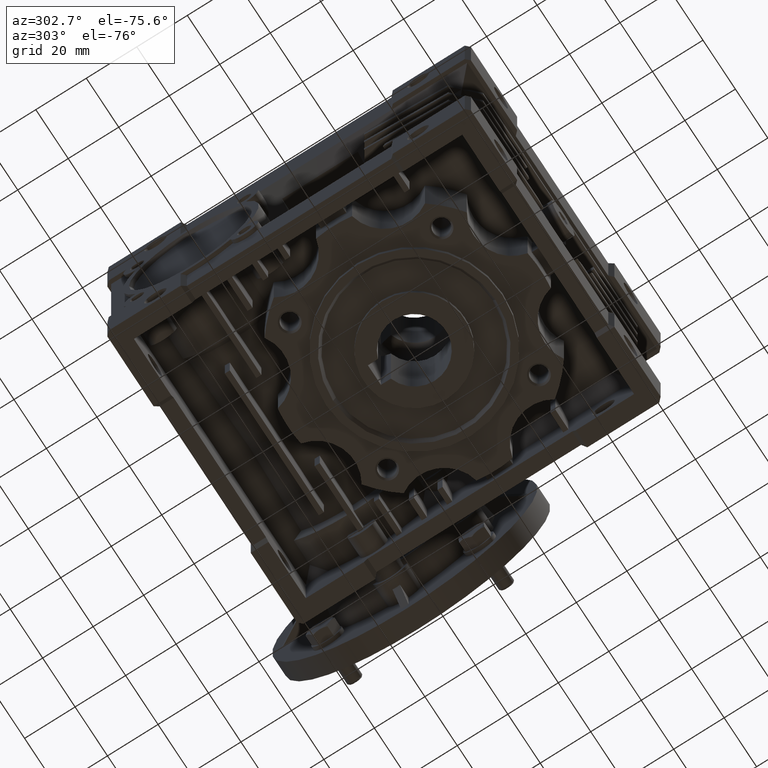
[diagram: clean part render]
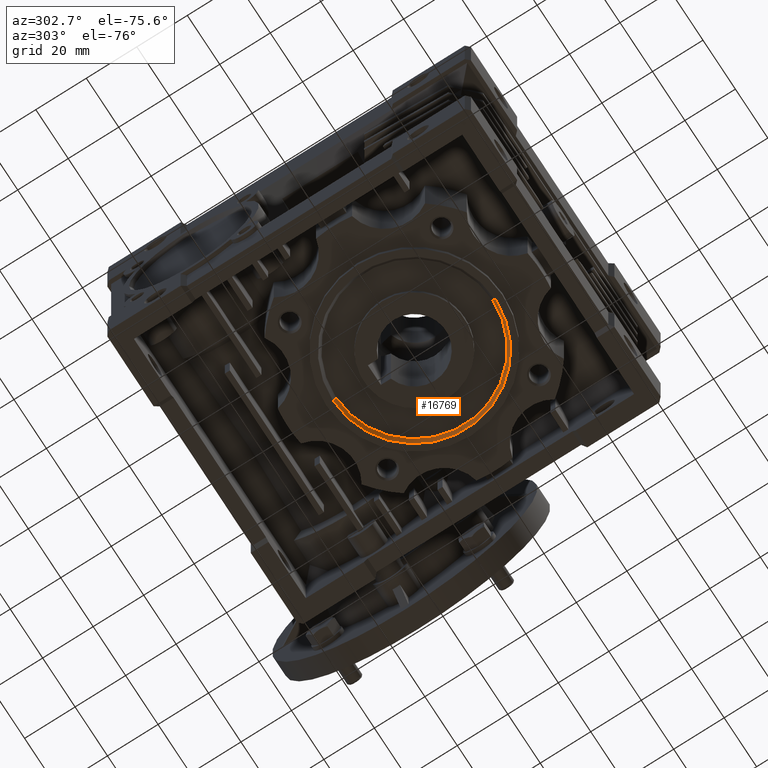
[diagram: same view with one face highlighted and labeled with its STEP entity id]
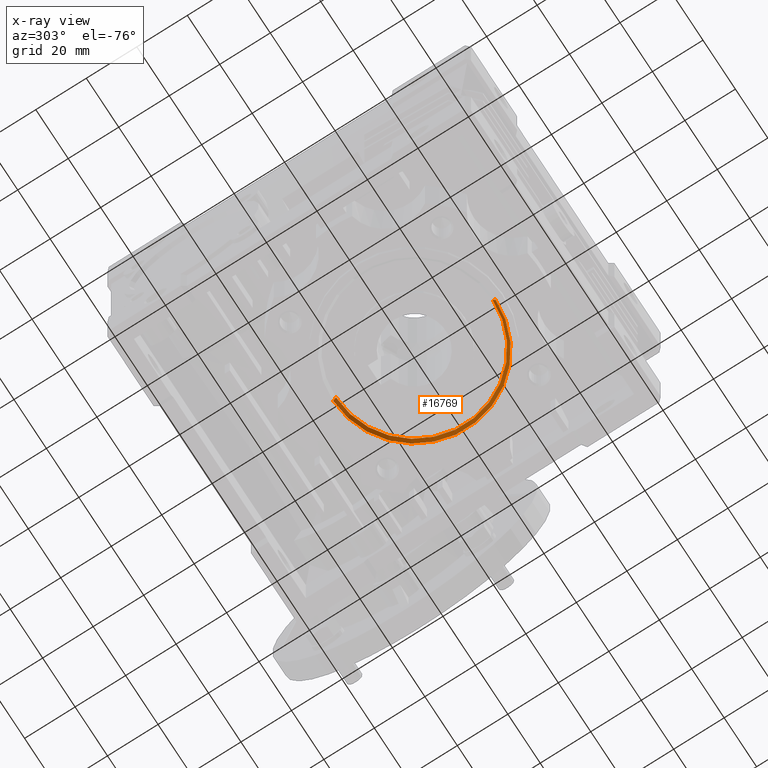
[diagram: x-ray of the same camera — body ghosted, the highlighted face saturated]
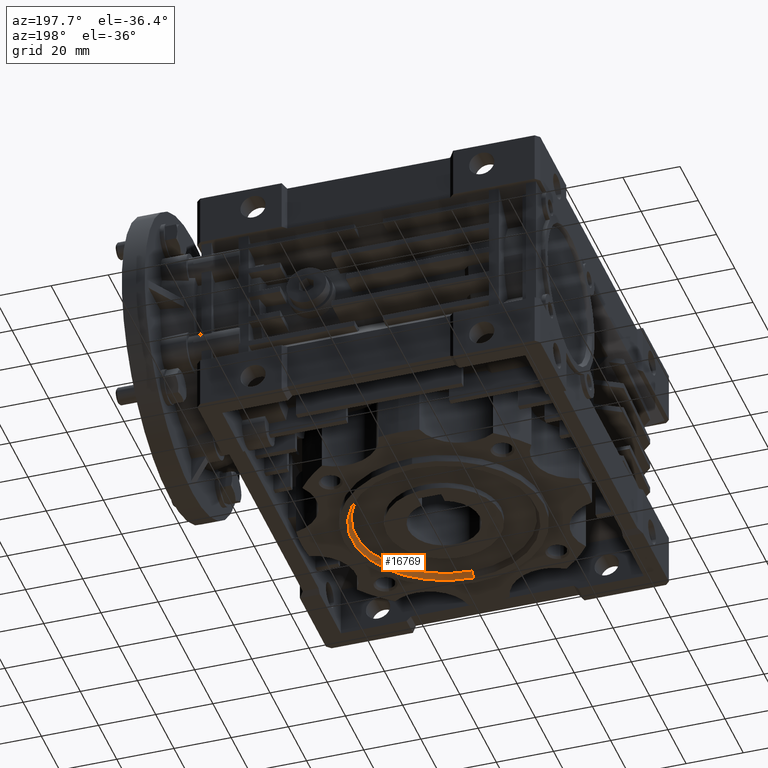
[diagram: same view with one face highlighted and labeled with its STEP entity id]
A machine part, auxiliary view. The second image highlights one B-rep face of the part: STEP entity #16769.
The next image is the same camera in x-ray: the body ghosted, the highlighted face saturated — about 0% of this face is hidden behind the body in this view.
A second angle (auxiliary view) of the same face is appended — the face is thin or edge-on in the first view.
In plain terms, the highlighted conical surface has half-angle 30.006 deg.
Its self-contained STEP definition (entity closure, byte-faithful):
#2052 = CARTESIAN_POINT ( 'NONE',  ( 0.000000000000000000, 0.000000000000000000, -46.00000000000000000 ) ) ;
#2141 = VECTOR ( 'NONE', #9228, 999.9999999999998863 ) ;
#4068 = CARTESIAN_POINT ( 'NONE',  ( 0.000000000000000000, -31.00000000000000000, -44.00000000000000000 ) ) ;
#4929 = VERTEX_POINT ( 'NONE', #19491 ) ;
#5472 = CIRCLE ( 'NONE', #21029, 32.15500000000000114 ) ;
#6647 = CARTESIAN_POINT ( 'NONE',  ( -3.937851782658314085E-15, 32.15500000000000114, -46.00000000000000000 ) ) ;
#7012 = EDGE_CURVE ( 'NONE', #34197, #24143, #33931, .T. ) ;
#7653 = FACE_OUTER_BOUND ( 'NONE', #20293, .T. ) ;
#8267 = DIRECTION ( 'NONE',  ( 0.000000000000000000, 0.000000000000000000, -1.000000000000000000 ) ) ;
#9228 = DIRECTION ( 'NONE',  ( 0.000000000000000000, -0.5000972435561920060, -0.8659692529111521209 ) ) ;
#9717 = DIRECTION ( 'NONE',  ( -6.124424885835048602E-17, 0.5000972435561920060, -0.8659692529111521209 ) ) ;
#9815 = DIRECTION ( 'NONE',  ( 0.000000000000000000, -1.000000000000000000, 0.000000000000000000 ) ) ;
#10182 = DIRECTION ( 'NONE',  ( 0.000000000000000000, 0.000000000000000000, -1.000000000000000000 ) ) ;
#10289 = DIRECTION ( 'NONE',  ( 0.000000000000000000, 0.000000000000000000, 1.000000000000000000 ) ) ;
#10411 = CARTESIAN_POINT ( 'NONE',  ( 0.000000000000000000, -32.15500000000000114, -46.00000000000000000 ) ) ;
#10977 = CARTESIAN_POINT ( 'NONE',  ( 0.000000000000000000, 0.000000000000000000, -44.00000000000000000 ) ) ;
#13511 = ORIENTED_EDGE ( 'NONE', *, *, #32877, .T. ) ;
#13563 = VERTEX_POINT ( 'NONE', #27552 ) ;
#15861 = AXIS2_PLACEMENT_3D ( 'NONE', #10977, #8267, #19270 ) ;
#16769 = ADVANCED_FACE ( 'NONE', ( #7653 ), #21588, .F. ) ;
#16969 = CARTESIAN_POINT ( 'NONE',  ( 0.000000000000000000, -32.15500000000000114, -46.00000000000000000 ) ) ;
#18123 = AXIS2_PLACEMENT_3D ( 'NONE', #2052, #10182, #9815 ) ;
#19270 = DIRECTION ( 'NONE',  ( 0.000000000000000000, -1.000000000000000000, 0.000000000000000000 ) ) ;
#19491 = CARTESIAN_POINT ( 'NONE',  ( -3.937851782658314085E-15, 32.15500000000000114, -46.00000000000000000 ) ) ;
#20190 = LINE ( 'NONE', #6647, #25414 ) ;
#20293 = EDGE_LOOP ( 'NONE', ( #34857, #13511, #25087, #32778 ) ) ;
#21029 = AXIS2_PLACEMENT_3D ( 'NONE', #34976, #10289, #21296 ) ;
#21296 = DIRECTION ( 'NONE',  ( 0.000000000000000000, -1.000000000000000000, 0.000000000000000000 ) ) ;
#21588 = CONICAL_SURFACE ( 'NONE', #18123, 32.15500000000000114, 0.5237110664251948267 ) ;
#22642 = EDGE_CURVE ( 'NONE', #24143, #4929, #5472, .T. ) ;
#24143 = VERTEX_POINT ( 'NONE', #10411 ) ;
#25087 = ORIENTED_EDGE ( 'NONE', *, *, #22642, .F. ) ;
#25414 = VECTOR ( 'NONE', #9717, 999.9999999999998863 ) ;
#25625 = CIRCLE ( 'NONE', #15861, 31.00000000000000000 ) ;
#26632 = EDGE_CURVE ( 'NONE', #13563, #34197, #25625, .T. ) ;
#27552 = CARTESIAN_POINT ( 'NONE',  ( -3.867128430007554600E-15, 31.00000000000000000, -44.00000000000000000 ) ) ;
#32778 = ORIENTED_EDGE ( 'NONE', *, *, #7012, .F. ) ;
#32877 = EDGE_CURVE ( 'NONE', #13563, #4929, #20190, .T. ) ;
#33931 = LINE ( 'NONE', #16969, #2141 ) ;
#34197 = VERTEX_POINT ( 'NONE', #4068 ) ;
#34857 = ORIENTED_EDGE ( 'NONE', *, *, #26632, .F. ) ;
#34976 = CARTESIAN_POINT ( 'NONE',  ( 0.000000000000000000, 0.000000000000000000, -46.00000000000000000 ) ) ;